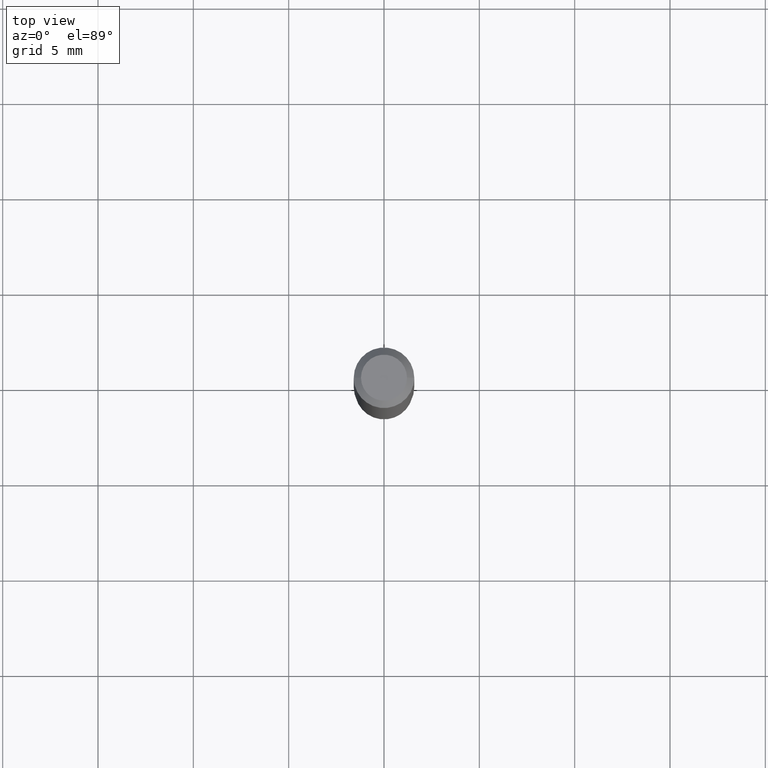
[diagram: clean part render]
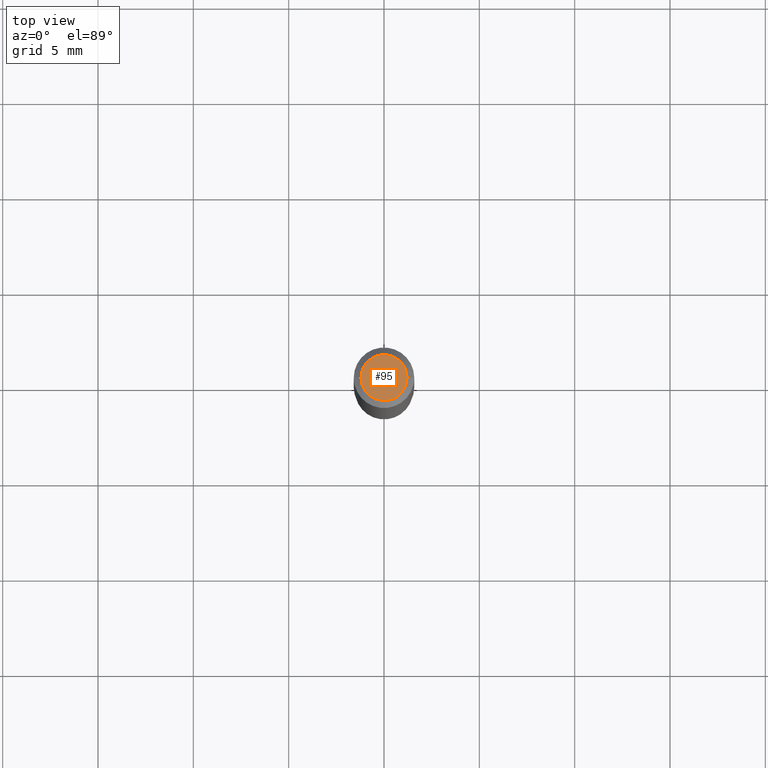
[diagram: same view with one face highlighted and labeled with its STEP entity id]
A machine part, top view. The second image highlights one B-rep face of the part: STEP entity #95.
In plain terms, the highlighted planar face has unit normal (0, -0, -1).
Its self-contained STEP definition (entity closure, byte-faithful):
#3 = CIRCLE ( 'NONE', #179, 0.04749999999999999362 ) ;
#48 = CIRCLE ( 'NONE', #86, 0.04749999999999999362 ) ;
#69 = CARTESIAN_POINT ( 'NONE',  ( 3.316907271900976096E-16, 0.04749999999999999362, -2.653275547260257586E-16 ) ) ;
#86 = AXIS2_PLACEMENT_3D ( 'NONE', #419, #424, #100 ) ;
#95 = ADVANCED_FACE ( 'NONE', ( #347 ), #283, .F. ) ;
#100 = DIRECTION ( 'NONE',  ( 1.000000000000000000, -6.982962677686267499E-15, 4.852736867747366768E-29 ) ) ;
#113 = EDGE_CURVE ( 'NONE', #398, #163, #48, .T. ) ;
#163 = VERTEX_POINT ( 'NONE', #322 ) ;
#179 = AXIS2_PLACEMENT_3D ( 'NONE', #271, #448, #202 ) ;
#189 = CARTESIAN_POINT ( 'NONE',  ( -0.04749999999999999362, 3.578768372314206562E-16, -1.989643822619551895E-16 ) ) ;
#202 = DIRECTION ( 'NONE',  ( 1.000000000000000000, -6.982962677686267499E-15, 4.852736867747366768E-29 ) ) ;
#213 = DIRECTION ( 'NONE',  ( 2.438088387897960049E-29, -3.491481338843145188E-15, -1.000000000000000000 ) ) ;
#267 = ORIENTED_EDGE ( 'NONE', *, *, #429, .T. ) ;
#271 = CARTESIAN_POINT ( 'NONE',  ( 4.865611903635008365E-45, -6.946804277620623666E-31, -1.989643822619527736E-16 ) ) ;
#283 = PLANE ( 'NONE',  #417 ) ;
#306 = EDGE_LOOP ( 'NONE', ( #437, #267 ) ) ;
#308 = DIRECTION ( 'NONE',  ( -1.000000000000000000, 6.982962677686265922E-15, -4.876176775795935793E-29 ) ) ;
#322 = CARTESIAN_POINT ( 'NONE',  ( 0.04749999999999999362, -4.035134999187581581E-16, -1.989643822619502098E-16 ) ) ;
#347 = FACE_OUTER_BOUND ( 'NONE', #306, .T. ) ;
#398 = VERTEX_POINT ( 'NONE', #189 ) ;
#417 = AXIS2_PLACEMENT_3D ( 'NONE', #69, #213, #308 ) ;
#419 = CARTESIAN_POINT ( 'NONE',  ( 4.865611903635008365E-45, -6.946804277620623666E-31, -1.989643822619527736E-16 ) ) ;
#424 = DIRECTION ( 'NONE',  ( -2.445468806185136597E-29, 3.491481338843145583E-15, 1.000000000000000000 ) ) ;
#429 = EDGE_CURVE ( 'NONE', #163, #398, #3, .T. ) ;
#437 = ORIENTED_EDGE ( 'NONE', *, *, #113, .T. ) ;
#448 = DIRECTION ( 'NONE',  ( -2.445468806185136597E-29, 3.491481338843145583E-15, 1.000000000000000000 ) ) ;